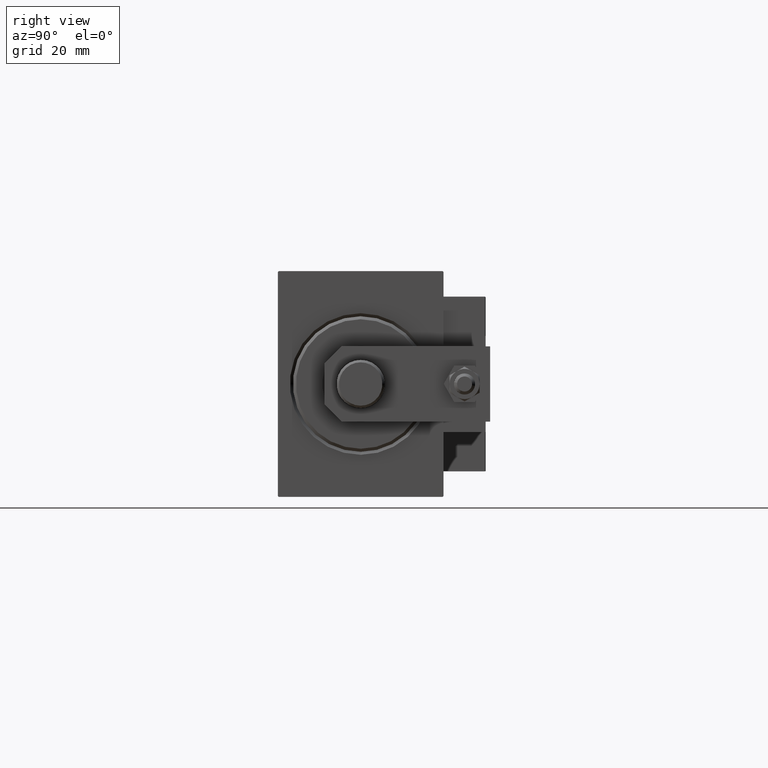
[diagram: clean part render]
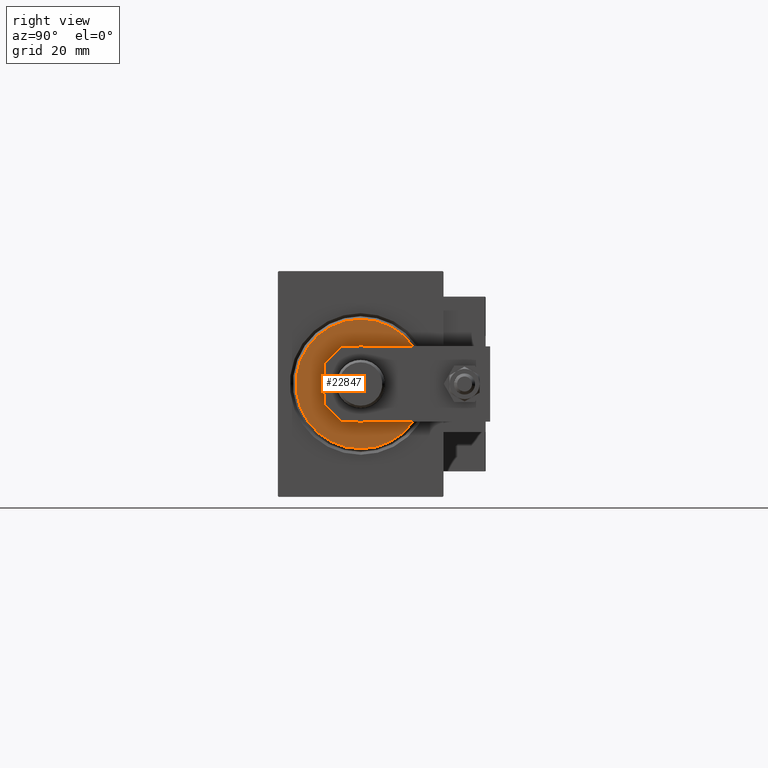
[diagram: same view with one face highlighted and labeled with its STEP entity id]
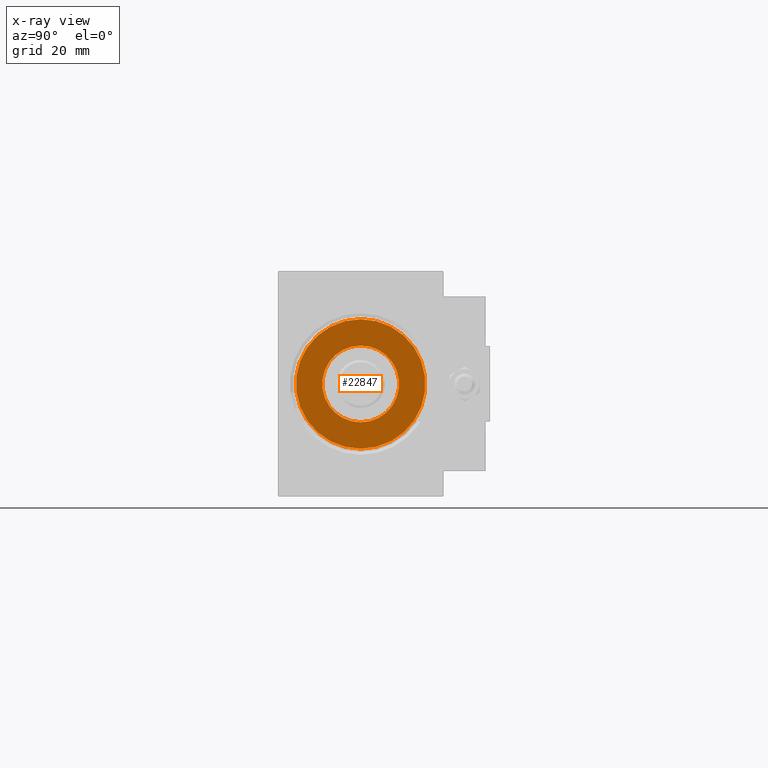
[diagram: x-ray of the same camera — body ghosted, the highlighted face saturated]
A machine part, right view. The second image highlights one B-rep face of the part: STEP entity #22847.
The next image is the same camera in x-ray: the body ghosted, the highlighted face saturated — about 0% of this face is hidden behind the body in this view.
In plain terms, the highlighted planar face has unit normal (1, 0, 0).
Its self-contained STEP definition (entity closure, byte-faithful):
#4106 = DIRECTION ( 'NONE',  ( -1.000000000000000000, 0.000000000000000000, -0.000000000000000000 ) ) ;
#4460 = DIRECTION ( 'NONE',  ( 0.000000000000000000, 0.000000000000000000, -1.000000000000000000 ) ) ;
#4967 = EDGE_LOOP ( 'NONE', ( #47468, #9657 ) ) ;
#6460 = VERTEX_POINT ( 'NONE', #41388 ) ;
#7922 = VERTEX_POINT ( 'NONE', #39279 ) ;
#8119 = CIRCLE ( 'NONE', #36511, 12.75000000000000000 ) ;
#8274 = CARTESIAN_POINT ( 'NONE',  ( 3.000000000000000000, 0.000000000000000000, 0.000000000000000000 ) ) ;
#9174 = DIRECTION ( 'NONE',  ( 0.000000000000000000, 0.000000000000000000, -1.000000000000000000 ) ) ;
#9657 = ORIENTED_EDGE ( 'NONE', *, *, #48557, .T. ) ;
#9817 = ORIENTED_EDGE ( 'NONE', *, *, #40664, .T. ) ;
#12439 = AXIS2_PLACEMENT_3D ( 'NONE', #8274, #23775, #4460 ) ;
#14128 = VERTEX_POINT ( 'NONE', #46596 ) ;
#15643 = PLANE ( 'NONE',  #12439 ) ;
#19577 = EDGE_CURVE ( 'NONE', #14128, #6460, #42435, .T. ) ;
#22027 = AXIS2_PLACEMENT_3D ( 'NONE', #42959, #4106, #28002 ) ;
#22847 = ADVANCED_FACE ( 'NONE', ( #31392, #27582 ), #15643, .T. ) ;
#23775 = DIRECTION ( 'NONE',  ( 1.000000000000000000, -0.000000000000000000, 0.000000000000000000 ) ) ;
#23864 = ORIENTED_EDGE ( 'NONE', *, *, #19577, .T. ) ;
#24218 = AXIS2_PLACEMENT_3D ( 'NONE', #24680, #47259, #9174 ) ;
#24680 = CARTESIAN_POINT ( 'NONE',  ( 3.000000000000000000, 0.000000000000000000, 0.000000000000000000 ) ) ;
#25763 = DIRECTION ( 'NONE',  ( 0.000000000000000000, 0.000000000000000000, -1.000000000000000000 ) ) ;
#25843 = CIRCLE ( 'NONE', #24218, 21.50000000000000000 ) ;
#26510 = DIRECTION ( 'NONE',  ( -1.000000000000000000, 0.000000000000000000, -0.000000000000000000 ) ) ;
#27582 = FACE_BOUND ( 'NONE', #4967, .T. ) ;
#28002 = DIRECTION ( 'NONE',  ( 0.000000000000000000, 0.000000000000000000, -1.000000000000000000 ) ) ;
#29055 = DIRECTION ( 'NONE',  ( 0.000000000000000000, 0.000000000000000000, -1.000000000000000000 ) ) ;
#29582 = CARTESIAN_POINT ( 'NONE',  ( 3.000000000000000000, 0.000000000000000000, 0.000000000000000000 ) ) ;
#31392 = FACE_OUTER_BOUND ( 'NONE', #46111, .T. ) ;
#35818 = CIRCLE ( 'NONE', #22027, 12.75000000000000000 ) ;
#36511 = AXIS2_PLACEMENT_3D ( 'NONE', #29582, #26510, #25763 ) ;
#39279 = CARTESIAN_POINT ( 'NONE',  ( 3.000000000000000000, 0.000000000000000000, 12.75000000000000000 ) ) ;
#40664 = EDGE_CURVE ( 'NONE', #6460, #14128, #25843, .T. ) ;
#40815 = AXIS2_PLACEMENT_3D ( 'NONE', #43596, #47151, #29055 ) ;
#41388 = CARTESIAN_POINT ( 'NONE',  ( 3.000000000000000000, 2.694222958124177204E-15, -21.50000000000000000 ) ) ;
#42435 = CIRCLE ( 'NONE', #40815, 21.50000000000000000 ) ;
#42959 = CARTESIAN_POINT ( 'NONE',  ( 3.000000000000000000, 0.000000000000000000, 0.000000000000000000 ) ) ;
#43596 = CARTESIAN_POINT ( 'NONE',  ( 3.000000000000000000, 0.000000000000000000, 0.000000000000000000 ) ) ;
#43919 = EDGE_CURVE ( 'NONE', #7922, #45126, #8119, .T. ) ;
#45126 = VERTEX_POINT ( 'NONE', #46579 ) ;
#46111 = EDGE_LOOP ( 'NONE', ( #23864, #9817 ) ) ;
#46579 = CARTESIAN_POINT ( 'NONE',  ( 3.000000000000000000, 1.561424668912874914E-15, -12.75000000000000000 ) ) ;
#46596 = CARTESIAN_POINT ( 'NONE',  ( 3.000000000000000000, 0.000000000000000000, 21.50000000000000000 ) ) ;
#47151 = DIRECTION ( 'NONE',  ( 1.000000000000000000, -0.000000000000000000, 0.000000000000000000 ) ) ;
#47259 = DIRECTION ( 'NONE',  ( 1.000000000000000000, -0.000000000000000000, 0.000000000000000000 ) ) ;
#47468 = ORIENTED_EDGE ( 'NONE', *, *, #43919, .T. ) ;
#48557 = EDGE_CURVE ( 'NONE', #45126, #7922, #35818, .T. ) ;